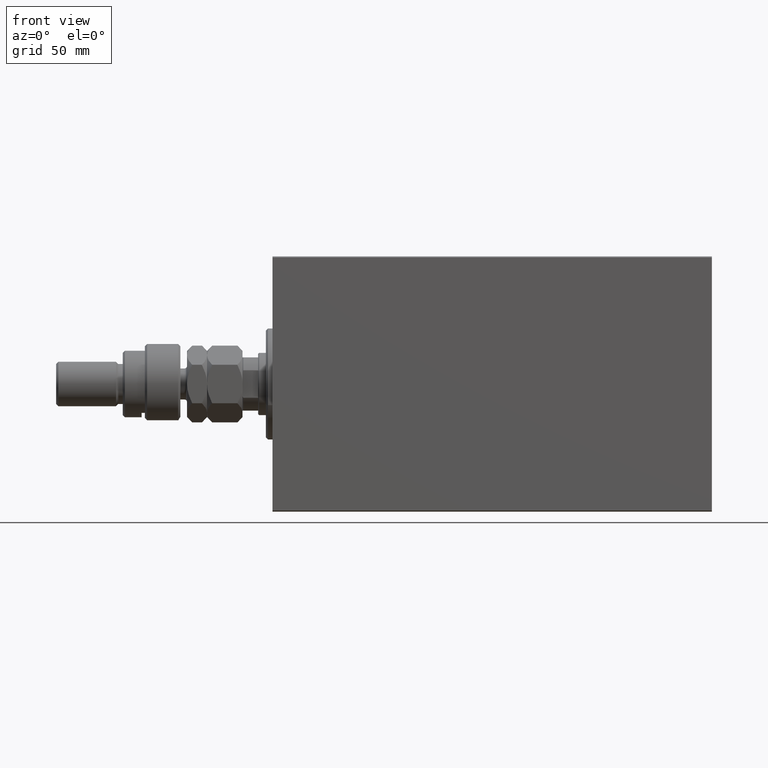
[diagram: clean part render]
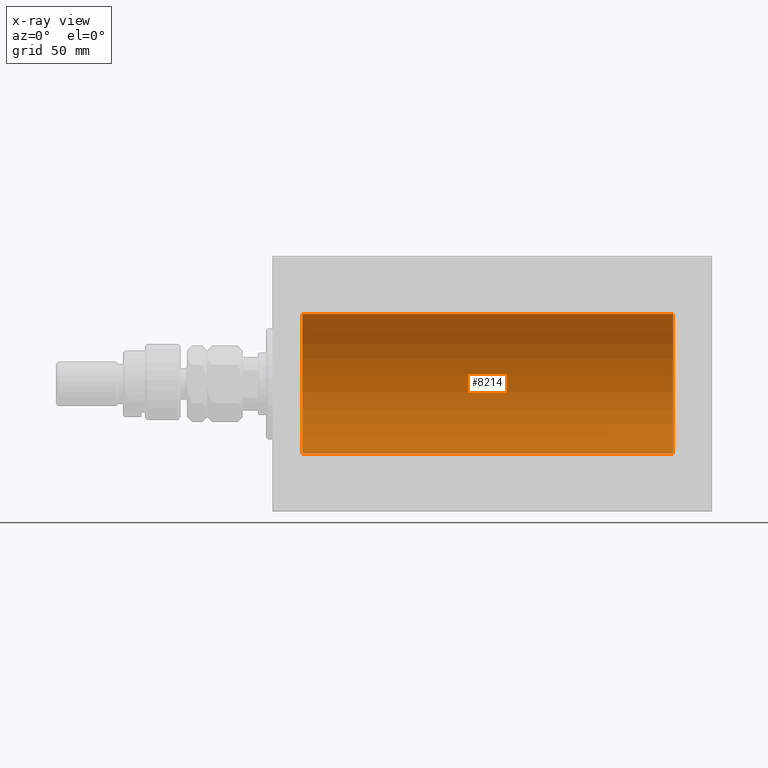
[diagram: x-ray — body ghosted, one internal face saturated and labeled with its STEP entity id]
A machine part, front view, then the same camera in x-ray: the body is ghosted and one INTERNAL B-rep face — a face not visible from any outside direction — is saturated and labeled: STEP entity #8214.
In plain terms, the highlighted cylindrical surface (partial cylindrical patch) has radius 31.5 mm, axis along (-1, -0, -0).
Its self-contained STEP definition (entity closure, byte-faithful):
#1364 = EDGE_CURVE ( 'NONE', #10239, #37572, #22827, .T. ) ;
#1654 = CARTESIAN_POINT ( 'NONE',  ( 13.50000000000001243, 0.000000000000000000, 0.000000000000000000 ) ) ;
#2270 = CARTESIAN_POINT ( 'NONE',  ( 180.5000000000000000, 0.000000000000000000, 0.000000000000000000 ) ) ;
#3179 = ORIENTED_EDGE ( 'NONE', *, *, #29800, .T. ) ;
#4172 = CARTESIAN_POINT ( 'NONE',  ( 180.5000000000000000, 3.857637417314162689E-15, -31.50000000000000000 ) ) ;
#4609 = VECTOR ( 'NONE', #38447, 1000.000000000000000 ) ;
#5366 = DIRECTION ( 'NONE',  ( 0.000000000000000000, 0.000000000000000000, 1.000000000000000000 ) ) ;
#6160 = DIRECTION ( 'NONE',  ( -1.000000000000000000, -0.000000000000000000, -0.000000000000000000 ) ) ;
#6936 = CARTESIAN_POINT ( 'NONE',  ( 13.50000000000001243, 0.000000000000000000, 31.50000000000000000 ) ) ;
#8214 = ADVANCED_FACE ( 'NONE', ( #42930 ), #10856, .F. ) ;
#10239 = VERTEX_POINT ( 'NONE', #12233 ) ;
#10480 = EDGE_CURVE ( 'NONE', #37572, #37966, #25853, .T. ) ;
#10856 = CYLINDRICAL_SURFACE ( 'NONE', #25954, 31.50000000000000000 ) ;
#12233 = CARTESIAN_POINT ( 'NONE',  ( 180.5000000000000000, 0.000000000000000000, 31.50000000000000000 ) ) ;
#18133 = AXIS2_PLACEMENT_3D ( 'NONE', #1654, #30422, #37496 ) ;
#20339 = ORIENTED_EDGE ( 'NONE', *, *, #28255, .T. ) ;
#21859 = CIRCLE ( 'NONE', #18133, 31.50000000000000000 ) ;
#22827 = CIRCLE ( 'NONE', #30373, 31.50000000000000000 ) ;
#24054 = LINE ( 'NONE', #46003, #4609 ) ;
#25853 = LINE ( 'NONE', #4172, #43333 ) ;
#25954 = AXIS2_PLACEMENT_3D ( 'NONE', #32294, #6160, #42231 ) ;
#26313 = DIRECTION ( 'NONE',  ( -1.000000000000000000, -0.000000000000000000, -0.000000000000000000 ) ) ;
#28255 = EDGE_CURVE ( 'NONE', #39420, #37966, #21859, .T. ) ;
#29800 = EDGE_CURVE ( 'NONE', #10239, #39420, #24054, .T. ) ;
#30373 = AXIS2_PLACEMENT_3D ( 'NONE', #2270, #41657, #5366 ) ;
#30422 = DIRECTION ( 'NONE',  ( -1.000000000000000000, 0.000000000000000000, 0.000000000000000000 ) ) ;
#30671 = ORIENTED_EDGE ( 'NONE', *, *, #10480, .F. ) ;
#30747 = EDGE_LOOP ( 'NONE', ( #30671, #45374, #3179, #20339 ) ) ;
#31025 = CARTESIAN_POINT ( 'NONE',  ( 13.50000000000001243, 3.857637417314162689E-15, -31.50000000000000000 ) ) ;
#32294 = CARTESIAN_POINT ( 'NONE',  ( 180.5000000000000000, 0.000000000000000000, 0.000000000000000000 ) ) ;
#37496 = DIRECTION ( 'NONE',  ( 0.000000000000000000, 0.000000000000000000, 1.000000000000000000 ) ) ;
#37572 = VERTEX_POINT ( 'NONE', #42167 ) ;
#37966 = VERTEX_POINT ( 'NONE', #31025 ) ;
#38447 = DIRECTION ( 'NONE',  ( -1.000000000000000000, -0.000000000000000000, -0.000000000000000000 ) ) ;
#39420 = VERTEX_POINT ( 'NONE', #6936 ) ;
#41657 = DIRECTION ( 'NONE',  ( -1.000000000000000000, 0.000000000000000000, 0.000000000000000000 ) ) ;
#42167 = CARTESIAN_POINT ( 'NONE',  ( 180.5000000000000000, 3.857637417314162689E-15, -31.50000000000000000 ) ) ;
#42231 = DIRECTION ( 'NONE',  ( 0.000000000000000000, 0.000000000000000000, 1.000000000000000000 ) ) ;
#42930 = FACE_OUTER_BOUND ( 'NONE', #30747, .T. ) ;
#43333 = VECTOR ( 'NONE', #26313, 1000.000000000000000 ) ;
#45374 = ORIENTED_EDGE ( 'NONE', *, *, #1364, .F. ) ;
#46003 = CARTESIAN_POINT ( 'NONE',  ( 180.5000000000000000, 0.000000000000000000, 31.50000000000000000 ) ) ;